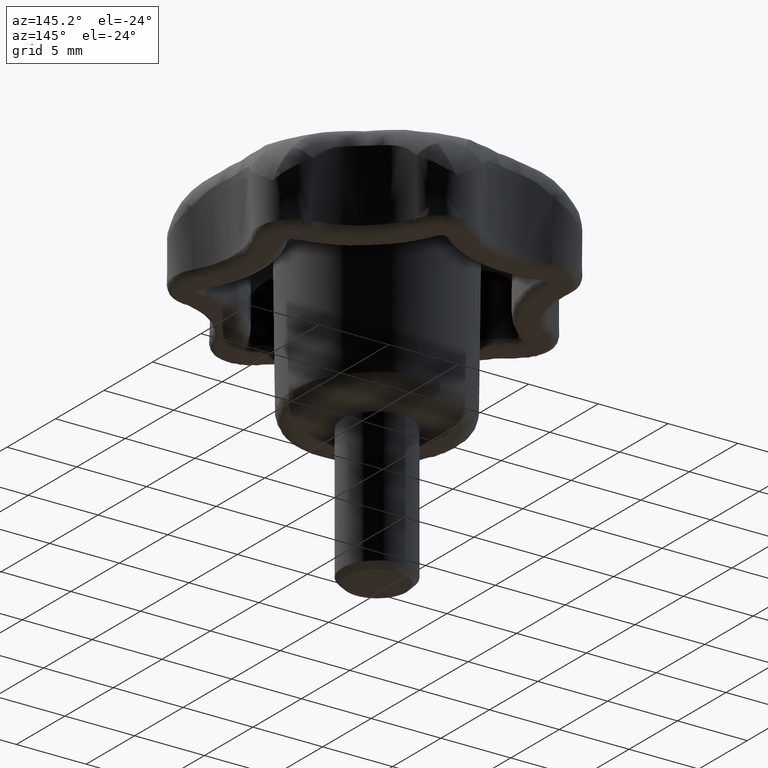
[diagram: clean part render]
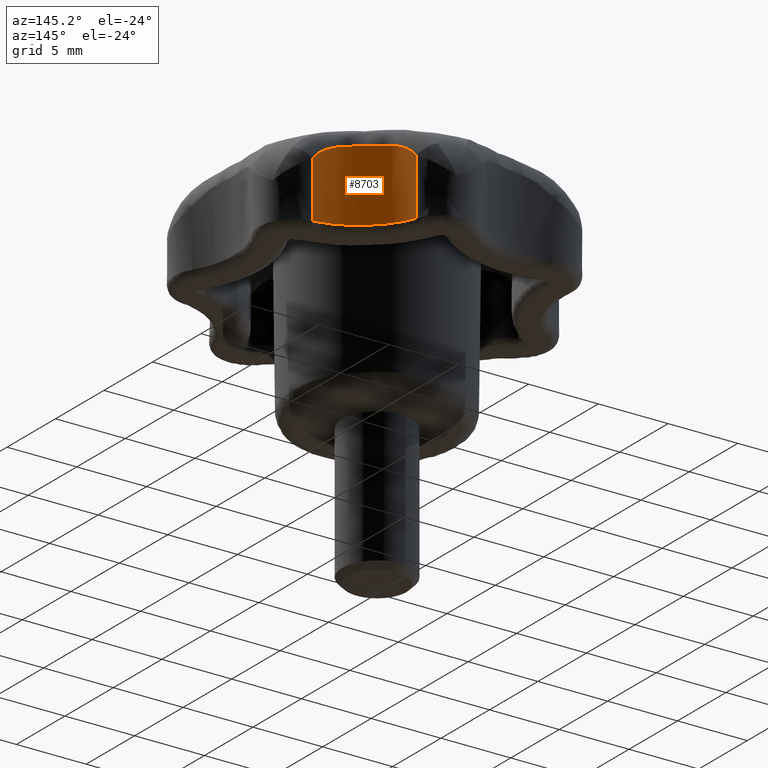
[diagram: same view with one face highlighted and labeled with its STEP entity id]
A machine part, auxiliary view. The second image highlights one B-rep face of the part: STEP entity #8703.
In plain terms, the highlighted face is a freeform B-spline surface patch.
Its self-contained STEP definition (entity closure, byte-faithful):
#2414=CARTESIAN_POINT('',(4.563283986690470,10.634380890525780,4.529264300125570));
#2415=VERTEX_POINT('',#2414);
#2558=CARTESIAN_POINT('',(5.734568689203740,8.723089650139491,5.602181755613050));
#2559=VERTEX_POINT('',#2558);
#2573=CARTESIAN_POINT('',(4.563283986690470,10.634380890525780,4.529264300125570));
#2574=CARTESIAN_POINT('',(4.584802440638526,10.577538697349381,4.619782429308501));
#2575=CARTESIAN_POINT('',(4.609398217834804,10.515139948268260,4.705347805457584));
#2576=CARTESIAN_POINT('',(4.666082772576167,10.379351793161410,4.866273473936856));
#2577=CARTESIAN_POINT('',(4.697650755433752,10.307237558758050,4.940108437881575));
#2578=CARTESIAN_POINT('',(4.768025930087105,10.155696083160651,5.075064803583174));
#2579=CARTESIAN_POINT('',(4.806844064570219,10.076240828100310,5.136203391198024));
#2580=CARTESIAN_POINT('',(4.892720118294169,9.910863738129280,5.246311728673848));
#2581=CARTESIAN_POINT('',(4.939913370842819,9.824783770160382,5.295245743885061));
#2582=CARTESIAN_POINT('',(5.091270046357984,9.564994301090140,5.421975537065743));
#2583=CARTESIAN_POINT('',(5.204212793954973,9.391208020530469,5.479793258234238));
#2584=CARTESIAN_POINT('',(5.360401882643457,9.177329331139104,5.531338088226296));
#2585=CARTESIAN_POINT('',(5.392389388091779,9.134716581385955,5.540597991115178));
#2586=CARTESIAN_POINT('',(5.457859779272331,9.049902785557165,5.557290218348344));
#2587=CARTESIAN_POINT('',(5.491302689905024,9.007759371151437,5.564707850859983));
#2588=CARTESIAN_POINT('',(5.592951012755872,8.883138854396963,5.584465587987497));
#2589=CARTESIAN_POINT('',(5.662762076451968,8.802094812507635,5.594407776009390));
#2590=CARTESIAN_POINT('',(5.734568689203736,8.723089650139487,5.602181755613042));
#2591=B_SPLINE_CURVE_WITH_KNOTS('',3,(#2573,#2574,#2575,#2576,#2577,#2578,#2579,#2580,#2581,#2582,#2583,#2584,#2585,#2586,#2587,#2588,#2589,#2590),.UNSPECIFIED.,.F.,.U.,(4,2,2,2,2,2,2,2,4),(0.0,0.125000000000001,0.250000000000003,0.375000000000004,0.500000000000005,0.750000000000006,0.812500000000005,0.875000000000004,1.0),.UNSPECIFIED.);
#2592=EDGE_CURVE('',#2415,#2559,#2591,.T.);
#2673=CARTESIAN_POINT('',(7.228321484750260,7.531861629681360,5.602181755613019));
#2674=VERTEX_POINT('',#2673);
#2688=CARTESIAN_POINT('',(5.734568689203740,8.723089650139491,5.602181755613050));
#2689=CARTESIAN_POINT('',(5.951508802545871,8.484401481711190,5.625668283548371));
#2690=CARTESIAN_POINT('',(6.418024297434149,8.047948479661987,5.648675083330430));
#2691=CARTESIAN_POINT('',(6.947343999576886,7.690249468072440,5.625668283548359));
#2692=CARTESIAN_POINT('',(7.228321484750260,7.531861629681360,5.602181755613030));
#2693=B_SPLINE_CURVE_WITH_KNOTS('',3,(#2688,#2689,#2690,#2691,#2692),.UNSPECIFIED.,.F.,.U.,(4,1,4),(0.0,0.500000000000000,1.0),.UNSPECIFIED.);
#2694=EDGE_CURVE('',#2559,#2674,#2693,.T.);
#2798=CARTESIAN_POINT('',(9.352328234418291,6.815246162849610,4.529263540310250));
#2799=VERTEX_POINT('',#2798);
#2813=CARTESIAN_POINT('',(7.228321484750258,7.531861629681356,5.602181755613015));
#2814=CARTESIAN_POINT('',(7.415181925428642,7.426527847290960,5.586562344124245));
#2815=CARTESIAN_POINT('',(7.606384786258063,7.331957349350039,5.562571741884589));
#2816=CARTESIAN_POINT('',(7.849345700942494,7.227288527851036,5.511260415531545));
#2817=CARTESIAN_POINT('',(7.898133349842173,7.207032677782383,5.499912245196381));
#2818=CARTESIAN_POINT('',(7.996051767915961,7.167881062282568,5.474686214702812));
#2819=CARTESIAN_POINT('',(8.045318757493691,7.148935479827538,5.460765297987024));
#2820=CARTESIAN_POINT('',(8.192583571397250,7.094500935161124,5.414911430804069));
#2821=CARTESIAN_POINT('',(8.289266548592231,7.061686794015183,5.379154603081575));
#2822=CARTESIAN_POINT('',(8.478616849193152,7.002475903911313,5.295494412739339));
#2823=CARTESIAN_POINT('',(8.571287020936778,6.976078374271660,5.247597345405732));
#2824=CARTESIAN_POINT('',(8.706478441557657,6.940842929002640,5.165282569363936));
#2825=CARTESIAN_POINT('',(8.750906010716518,6.929824136840065,5.136098504972368));
#2826=CARTESIAN_POINT('',(8.838340901504276,6.909159481722281,5.073986173411933));
#2827=CARTESIAN_POINT('',(8.881209563031552,6.899551024932883,5.041129581041825));
#2828=CARTESIAN_POINT('',(9.087743431210114,6.855478807140577,4.870399559445708));
#2829=CARTESIAN_POINT('',(9.231336587774720,6.831986765183273,4.711173827901243));
#2830=CARTESIAN_POINT('',(9.352328234418291,6.815246162849610,4.529263540310250));
#2831=B_SPLINE_CURVE_WITH_KNOTS('',3,(#2813,#2814,#2815,#2816,#2817,#2818,#2819,#2820,#2821,#2822,#2823,#2824,#2825,#2826,#2827,#2828,#2829,#2830),.UNSPECIFIED.,.F.,.U.,(4,2,2,2,2,2,2,2,4),(0.0,0.250000000000000,0.312499999999999,0.374999999999999,0.500000000000000,0.625000000000002,0.687500000000002,0.750000000000002,1.0),.UNSPECIFIED.);
#2832=EDGE_CURVE('',#2674,#2799,#2831,.T.);
#6909=CARTESIAN_POINT('',(9.352328234418291,6.815246162849610,0.499999999999945));
#6910=VERTEX_POINT('',#6909);
#7051=CARTESIAN_POINT('',(4.563283986690470,10.634380890525780,0.499999999999945));
#7052=VERTEX_POINT('',#7051);
#7066=CARTESIAN_POINT('',(9.352328234418289,6.815246162849604,0.499999999999945));
#7067=CARTESIAN_POINT('',(5.824262892501009,7.303395060187942,0.499999999999945));
#7068=CARTESIAN_POINT('',(4.563283986690470,10.634380890525780,0.499999999999945));
#7076=(BOUNDED_CURVE()B_SPLINE_CURVE(2,(#7066,#7067,#7068),.UNSPECIFIED.,.F.,.U.)CURVE()GEOMETRIC_REPRESENTATION_ITEM()QUASI_UNIFORM_CURVE()RATIONAL_B_SPLINE_CURVE((1.0,0.859906594801159,1.0))REPRESENTATION_ITEM(''));
#7077=EDGE_CURVE('',#6910,#7052,#7076,.T.);
#8673=CARTESIAN_POINT('',(4.488804739436978,10.842639447575911,5.765600975525383));
#8674=CARTESIAN_POINT('',(4.488804739436978,10.842639447575911,0.368359975611809));
#8675=CARTESIAN_POINT('',(5.743025157763343,7.120629618589410,5.765600975525383));
#8676=CARTESIAN_POINT('',(5.743025157763343,7.120629618589410,0.368359975611809));
#8677=CARTESIAN_POINT('',(9.655970051147905,6.781088330739780,5.765600975525383));
#8678=CARTESIAN_POINT('',(9.655970051147905,6.781088330739780,0.368359975611809));
#8686=(BOUNDED_SURFACE()B_SPLINE_SURFACE(1,2,((#8673,#8675,#8677),(#8674,#8676,#8678)),.UNSPECIFIED.,.F.,.F.,.U.)B_SPLINE_SURFACE_WITH_KNOTS((2,2),(3,3),(0.0,5.397240999913574),(0.0,7.156749668339836),.UNSPECIFIED.)GEOMETRIC_REPRESENTATION_ITEM()RATIONAL_B_SPLINE_SURFACE(((1.0,0.833240429305453,0.991800928451195),(1.0,0.833240429305453,0.991800928451195)))REPRESENTATION_ITEM('')SURFACE());
#8687=CARTESIAN_POINT('',(4.563283986690470,10.634380890525780,4.529264300125570));
#8688=CARTESIAN_POINT('',(4.563283986690470,10.634380890525780,0.499999999999945));
#8689=QUASI_UNIFORM_CURVE('',1,(#8687,#8688),.UNSPECIFIED.,.F.,.U.);
#8690=EDGE_CURVE('',#2415,#7052,#8689,.T.);
#8691=ORIENTED_EDGE('',*,*,#8690,.F.);
#8692=ORIENTED_EDGE('',*,*,#2592,.T.);
#8693=ORIENTED_EDGE('',*,*,#2694,.T.);
#8694=ORIENTED_EDGE('',*,*,#2832,.T.);
#8695=CARTESIAN_POINT('',(9.352328234418291,6.815246162849610,4.529263540310250));
#8696=CARTESIAN_POINT('',(9.352328234418291,6.815246162849610,0.499999999999945));
#8697=QUASI_UNIFORM_CURVE('',1,(#8695,#8696),.UNSPECIFIED.,.F.,.U.);
#8698=EDGE_CURVE('',#2799,#6910,#8697,.T.);
#8699=ORIENTED_EDGE('',*,*,#8698,.T.);
#8700=ORIENTED_EDGE('',*,*,#7077,.T.);
#8701=EDGE_LOOP('',(#8691,#8692,#8693,#8694,#8699,#8700));
#8702=FACE_OUTER_BOUND('',#8701,.T.);
#8703=ADVANCED_FACE('',(#8702),#8686,.F.);